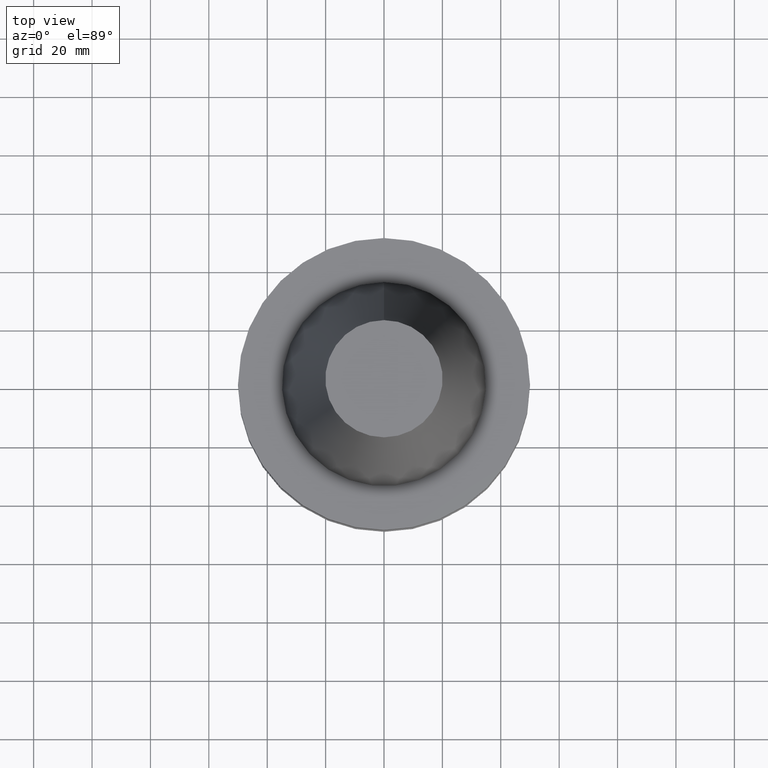
[diagram: clean part render]
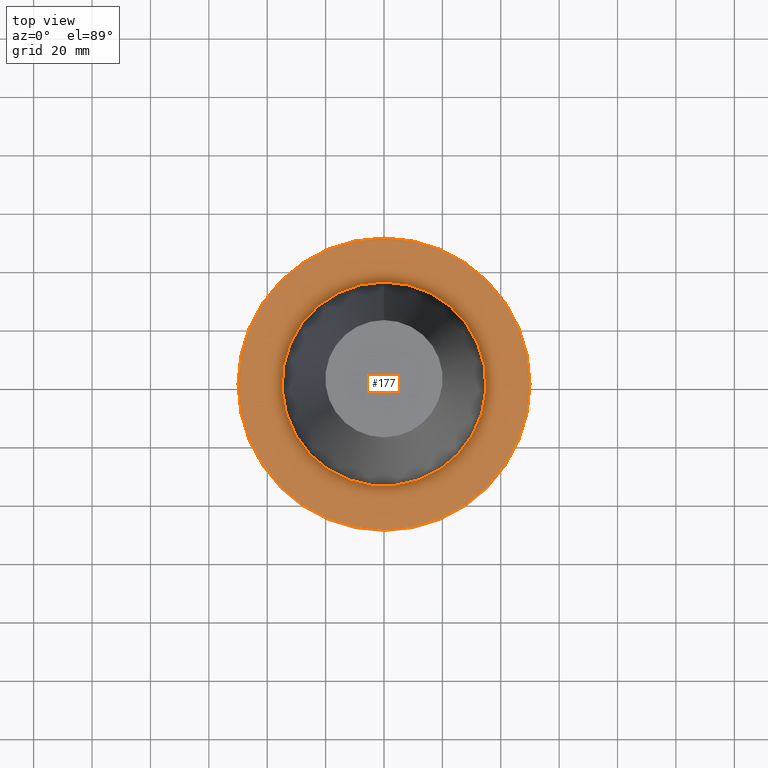
[diagram: same view with one face highlighted and labeled with its STEP entity id]
A machine part, top view. The second image highlights one B-rep face of the part: STEP entity #177.
In plain terms, the highlighted planar face has unit normal (-0, -0, 1).
Its self-contained STEP definition (entity closure, byte-faithful):
#110=EDGE_CURVE('Unnamed[1]',#255,#255,#256,.T.);
#117=EDGE_CURVE('Unnamed[1]',#266,#266,#267,.T.);
#177=ADVANCED_FACE('Unnamed[1]',(#356,#357),#358,.T.);
#255=VERTEX_POINT('',#445);
#256=CIRCLE('',#446,34.925);
#266=VERTEX_POINT('',#459);
#267=CIRCLE('',#460,50.0);
#356=FACE_BOUND('',#570,.T.);
#357=FACE_OUTER_BOUND('',#571,.T.);
#358=PLANE('',#572);
#445=CARTESIAN_POINT('',(9.18485099360511E-017,34.925,-1.5));
#446=AXIS2_PLACEMENT_3D('',#641,#642,#643);
#459=CARTESIAN_POINT('',(9.18485099360509E-017,50.0,-1.49999999999999));
#460=AXIS2_PLACEMENT_3D('',#653,#654,#655);
#570=EDGE_LOOP('',(#750));
#571=EDGE_LOOP('',(#751));
#572=AXIS2_PLACEMENT_3D('',#752,#753,#754);
#641=CARTESIAN_POINT('',(9.18485099360515E-017,1.29959575562706E-014,-1.5));
#642=DIRECTION('',(-6.12323399573677E-017,1.40684069939028E-019,1.0));
#643=DIRECTION('',(-4.81853831597193E-033,1.0,-1.40684069939028E-019));
#653=CARTESIAN_POINT('',(9.18485099360515E-017,1.29959575562706E-014,-1.5));
#654=DIRECTION('',(-6.12323399573677E-017,1.40684069939013E-019,1.0));
#655=DIRECTION('',(-4.81853831597193E-033,1.0,-1.40684069939013E-019));
#750=ORIENTED_EDGE('',*,*,#110,.F.);
#751=ORIENTED_EDGE('',*,*,#117,.T.);
#752=CARTESIAN_POINT('',(9.1848509936051E-017,42.4625,-1.49999999999999));
#753=DIRECTION('',(-6.12323399573677E-017,-1.22464679914735E-016,1.0));
#754=DIRECTION('',(-1.23259516440783E-032,1.0,1.22464679914735E-016));